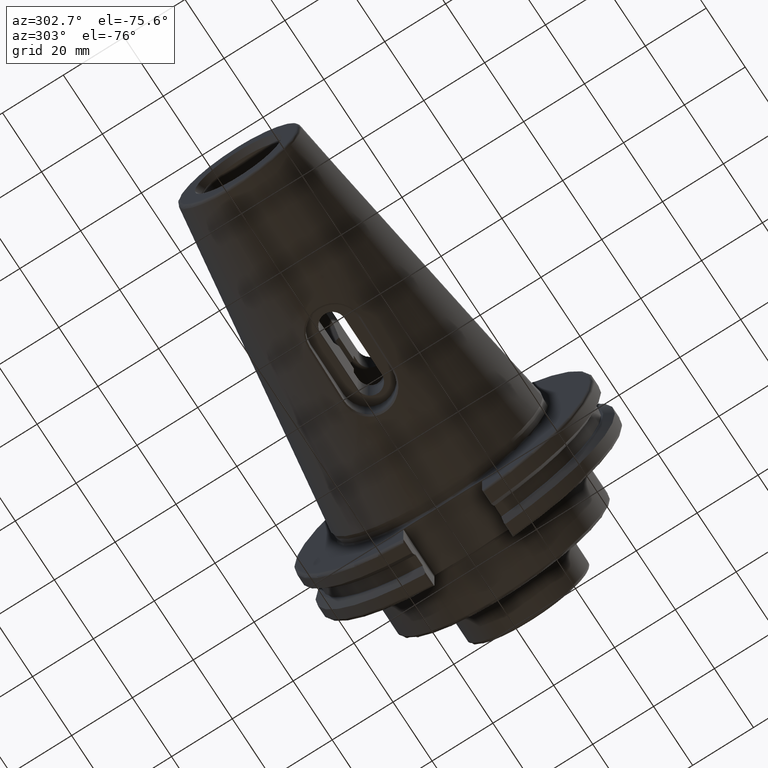
[diagram: clean part render]
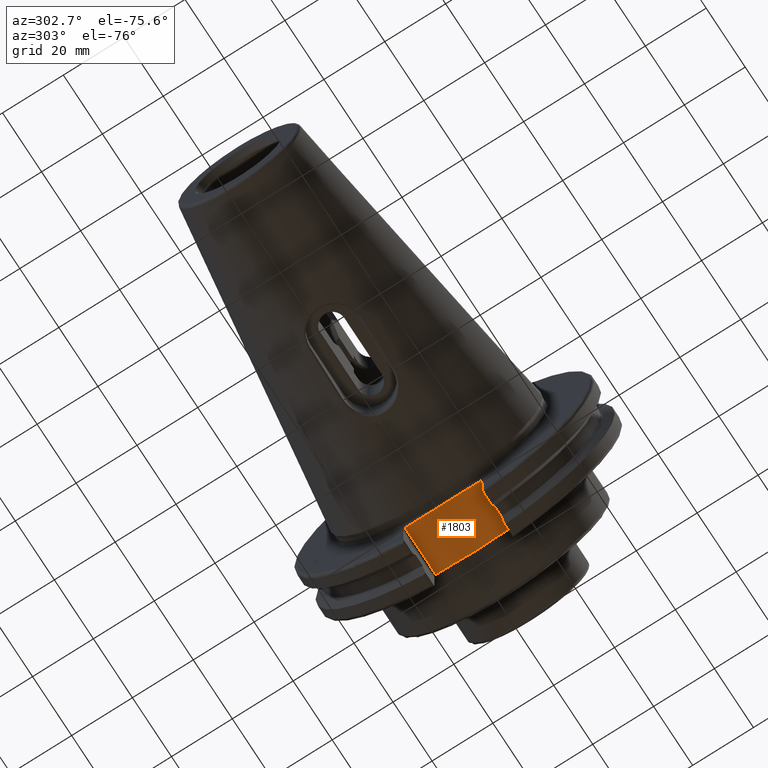
[diagram: same view with one face highlighted and labeled with its STEP entity id]
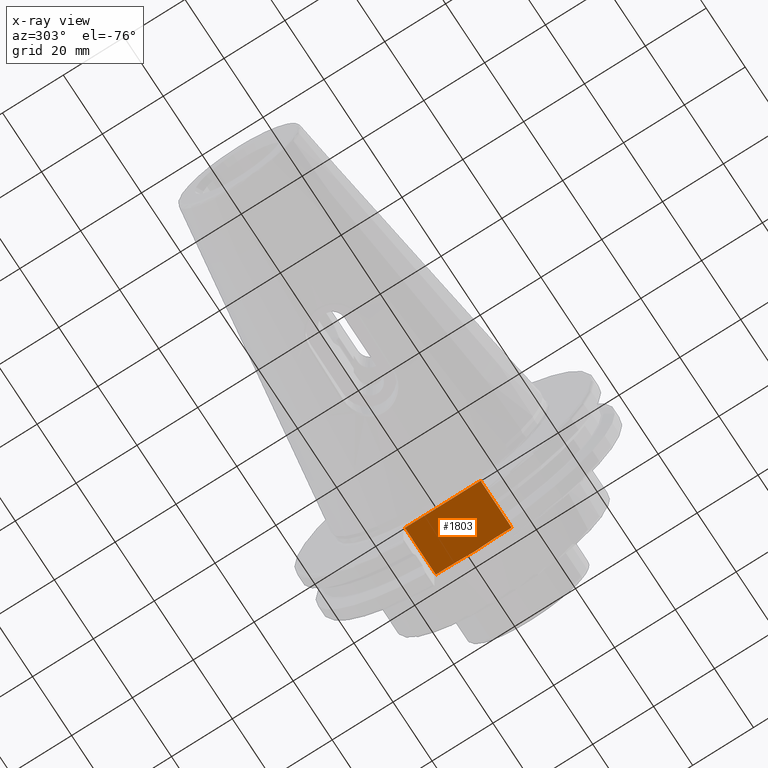
[diagram: x-ray of the same camera — body ghosted, the highlighted face saturated]
A machine part, auxiliary view. The second image highlights one B-rep face of the part: STEP entity #1803.
The next image is the same camera in x-ray: the body ghosted, the highlighted face saturated — about 0% of this face is hidden behind the body in this view.
In plain terms, the highlighted planar face has unit normal (0, 0, 1).
Its self-contained STEP definition (entity closure, byte-faithful):
#188=PLANE('',#1968);
#275=FACE_OUTER_BOUND('',#385,.T.);
#385=EDGE_LOOP('',(#1582,#1583,#1584,#1585,#1586,#1587,#1588));
#453=B_SPLINE_CURVE_WITH_KNOTS('',3,(#3447,#3448,#3449,#3450,#3451,#3452),
 .UNSPECIFIED.,.F.,.F.,(4,2,4),(2.09820602433263,2.5247494364482,2.72121070581847),
 .UNSPECIFIED.);
#454=B_SPLINE_CURVE_WITH_KNOTS('',3,(#3455,#3456,#3457,#3458,#3459,#3460),
 .UNSPECIFIED.,.F.,.F.,(4,2,4),(1.47520134284679,1.67166261221706,2.09820602433263),
 .UNSPECIFIED.);
#533=LINE('',#3490,#658);
#543=LINE('',#3513,#668);
#551=LINE('',#3543,#676);
#577=LINE('',#3778,#702);
#578=LINE('',#3780,#703);
#658=VECTOR('',#2232,10.);
#668=VECTOR('',#2246,10.);
#676=VECTOR('',#2270,10.);
#702=VECTOR('',#2346,10.);
#703=VECTOR('',#2349,10.);
#807=VERTEX_POINT('',#3444);
#808=VERTEX_POINT('',#3446);
#809=VERTEX_POINT('',#3453);
#816=VERTEX_POINT('',#3489);
#827=VERTEX_POINT('',#3511);
#840=VERTEX_POINT('',#3540);
#841=VERTEX_POINT('',#3542);
#1028=EDGE_CURVE('',#808,#807,#453,.F.);
#1030=EDGE_CURVE('',#807,#809,#454,.F.);
#1044=EDGE_CURVE('',#808,#816,#533,.T.);
#1056=EDGE_CURVE('',#827,#809,#543,.T.);
#1070=EDGE_CURVE('',#840,#841,#551,.T.);
#1131=EDGE_CURVE('',#816,#840,#577,.T.);
#1132=EDGE_CURVE('',#841,#827,#578,.T.);
#1582=ORIENTED_EDGE('',*,*,#1131,.F.);
#1583=ORIENTED_EDGE('',*,*,#1044,.F.);
#1584=ORIENTED_EDGE('',*,*,#1028,.T.);
#1585=ORIENTED_EDGE('',*,*,#1030,.T.);
#1586=ORIENTED_EDGE('',*,*,#1056,.F.);
#1587=ORIENTED_EDGE('',*,*,#1132,.F.);
#1588=ORIENTED_EDGE('',*,*,#1070,.F.);
#1803=ADVANCED_FACE('',(#275),#188,.F.);
#1968=AXIS2_PLACEMENT_3D('',#3779,#2347,#2348);
#2232=DIRECTION('',(0.,1.,0.));
#2246=DIRECTION('',(0.,1.,0.));
#2270=DIRECTION('',(0.,-1.,0.));
#2346=DIRECTION('',(-1.,2.63163976207444E-16,0.));
#2347=DIRECTION('center_axis',(0.,0.,1.));
#2348=DIRECTION('ref_axis',(1.,0.,0.));
#2349=DIRECTION('',(1.,2.63163976207445E-16,0.));
#3444=CARTESIAN_POINT('',(19.2646090145666,-2.50881368973018E-15,-35.306));
#3446=CARTESIAN_POINT('',(19.05,6.64017989214148,-35.306));
#3447=CARTESIAN_POINT('Ctrl Pts',(19.2646090145666,-6.93889390390723E-16,
-35.306));
#3448=CARTESIAN_POINT('Ctrl Pts',(19.2646090145666,1.42181137371857,-35.306));
#3449=CARTESIAN_POINT('Ctrl Pts',(19.1680602893707,3.12525108863957,-35.306));
#3450=CARTESIAN_POINT('Ctrl Pts',(19.0762097808881,5.19990111728298,-35.306));
#3451=CARTESIAN_POINT('Ctrl Pts',(19.05,5.98530899424058,-35.306));
#3452=CARTESIAN_POINT('Ctrl Pts',(19.05,6.64017989214148,-35.306));
#3453=CARTESIAN_POINT('',(19.05,-6.64017989214148,-35.306));
#3455=CARTESIAN_POINT('Ctrl Pts',(19.05,-6.64017989214148,-35.306));
#3456=CARTESIAN_POINT('Ctrl Pts',(19.05,-5.98530899424058,-35.306));
#3457=CARTESIAN_POINT('Ctrl Pts',(19.0762097808881,-5.19990111728298,-35.306));
#3458=CARTESIAN_POINT('Ctrl Pts',(19.1680602893707,-3.12525108863957,-35.306));
#3459=CARTESIAN_POINT('Ctrl Pts',(19.2646090145666,-1.42181137371857,-35.306));
#3460=CARTESIAN_POINT('Ctrl Pts',(19.2646090145666,5.55111512312578E-16,
-35.306));
#3489=CARTESIAN_POINT('',(19.05,12.45,-35.306));
#3490=CARTESIAN_POINT('',(19.05,-3.33066907387547E-15,-35.306));
#3511=CARTESIAN_POINT('',(19.05,-12.45,-35.306));
#3513=CARTESIAN_POINT('',(19.05,-3.33066907387547E-15,-35.306));
#3540=CARTESIAN_POINT('',(3.175,12.45,-35.306));
#3542=CARTESIAN_POINT('',(3.175,-12.45,-35.306));
#3543=CARTESIAN_POINT('',(3.175,24.60625,-35.306));
#3778=CARTESIAN_POINT('',(10.63125,12.45,-35.306));
#3779=CARTESIAN_POINT('Origin',(18.0875,-6.66133814775094E-15,-35.306));
#3780=CARTESIAN_POINT('',(19.06875,-12.45,-35.306));